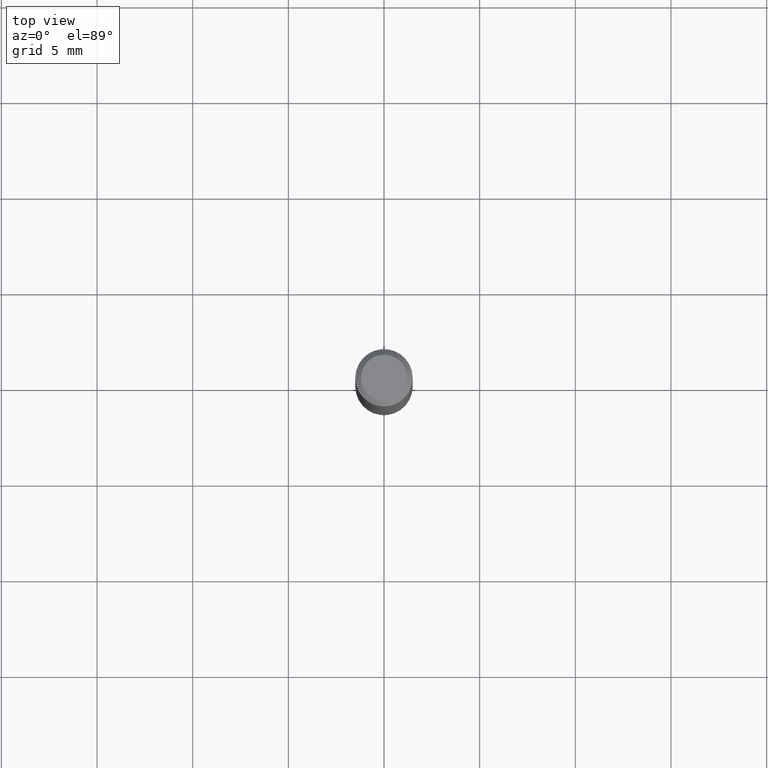
[diagram: clean part render]
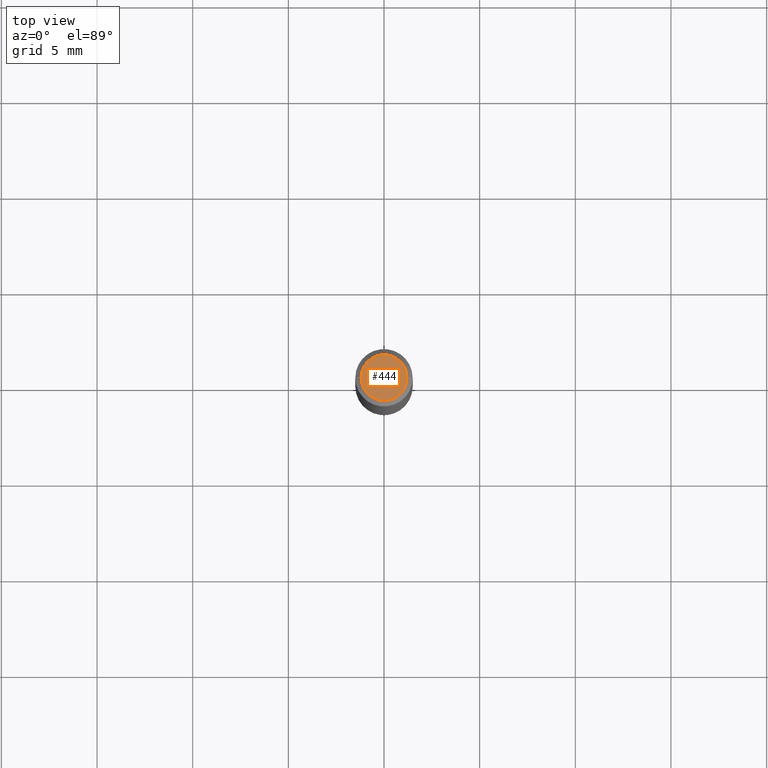
[diagram: same view with one face highlighted and labeled with its STEP entity id]
A machine part, top view. The second image highlights one B-rep face of the part: STEP entity #444.
In plain terms, the highlighted planar face has unit normal (0, -0, -1).
Its self-contained STEP definition (entity closure, byte-faithful):
#11 = EDGE_LOOP ( 'NONE', ( #184, #53 ) ) ;
#33 = DIRECTION ( 'NONE',  ( -2.445468806185136597E-29, 3.491481338843145583E-15, 1.000000000000000000 ) ) ;
#53 = ORIENTED_EDGE ( 'NONE', *, *, #212, .T. ) ;
#74 = DIRECTION ( 'NONE',  ( 2.438088387897960049E-29, -3.491481338843145188E-15, -1.000000000000000000 ) ) ;
#91 = CARTESIAN_POINT ( 'NONE',  ( 0.04724000000000000421, -3.852183633974369345E-16, -3.380025165621689721E-19 ) ) ;
#156 = CARTESIAN_POINT ( 'NONE',  ( 4.132873053354867254E-48, -5.900647395337818946E-34, -1.690012582823346072E-19 ) ) ;
#158 = DIRECTION ( 'NONE',  ( 1.000000000000000000, -6.982962677686266711E-15, 4.876185090822587894E-29 ) ) ;
#170 = EDGE_CURVE ( 'NONE', #380, #230, #431, .T. ) ;
#184 = ORIENTED_EDGE ( 'NONE', *, *, #170, .T. ) ;
#193 = CARTESIAN_POINT ( 'NONE',  ( -0.04724000000000000421, 3.504923541997677355E-16, -3.380025165670481712E-19 ) ) ;
#212 = EDGE_CURVE ( 'NONE', #230, #380, #224, .T. ) ;
#223 = AXIS2_PLACEMENT_3D ( 'NONE', #328, #33, #452 ) ;
#224 = CIRCLE ( 'NONE', #302, 0.04724000000000000421 ) ;
#230 = VERTEX_POINT ( 'NONE', #91 ) ;
#302 = AXIS2_PLACEMENT_3D ( 'NONE', #377, #404, #158 ) ;
#309 = DIRECTION ( 'NONE',  ( -1.000000000000000000, 6.982962677686265922E-15, -4.876176775795935793E-29 ) ) ;
#328 = CARTESIAN_POINT ( 'NONE',  ( 8.265746106709734507E-48, -1.180129479067563789E-33, -3.380025165646692144E-19 ) ) ;
#377 = CARTESIAN_POINT ( 'NONE',  ( 8.265746106709734507E-48, -1.180129479067563789E-33, -3.380025165646692144E-19 ) ) ;
#380 = VERTEX_POINT ( 'NONE', #193 ) ;
#404 = DIRECTION ( 'NONE',  ( -2.445468806185136597E-29, 3.491481338843145583E-15, 1.000000000000000000 ) ) ;
#412 = AXIS2_PLACEMENT_3D ( 'NONE', #156, #74, #309 ) ;
#431 = CIRCLE ( 'NONE', #223, 0.04724000000000000421 ) ;
#444 = ADVANCED_FACE ( 'NONE', ( #454 ), #456, .F. ) ;
#452 = DIRECTION ( 'NONE',  ( 1.000000000000000000, -6.982962677686266711E-15, 4.876185090822587894E-29 ) ) ;
#454 = FACE_OUTER_BOUND ( 'NONE', #11, .T. ) ;
#456 = PLANE ( 'NONE',  #412 ) ;